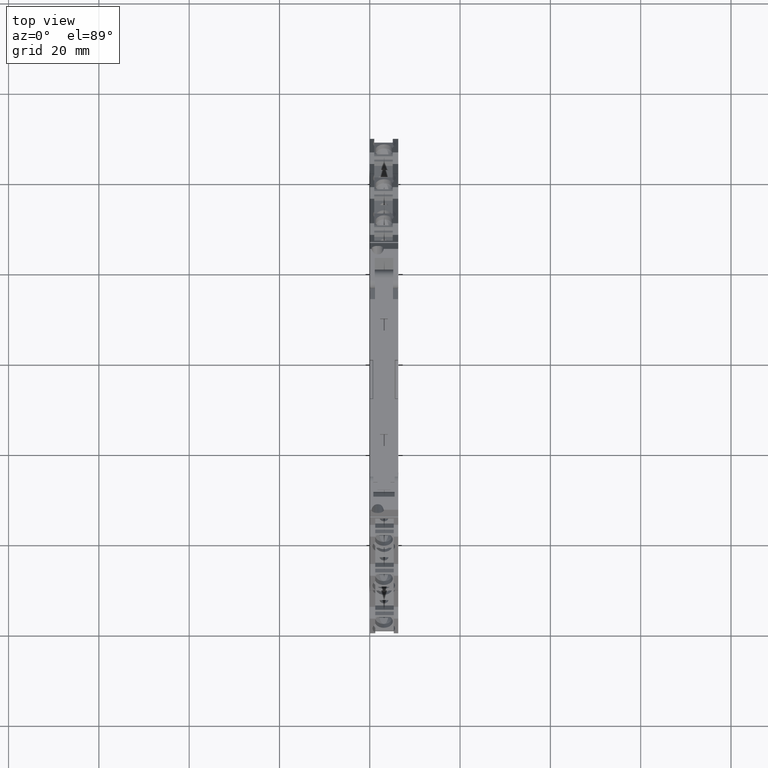
[diagram: clean part render]
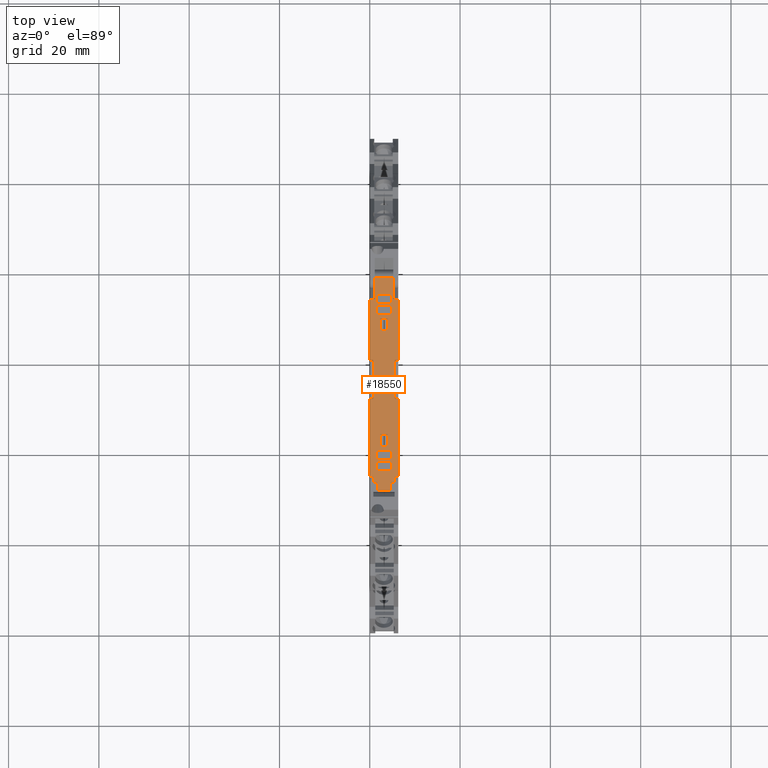
[diagram: same view with one face highlighted and labeled with its STEP entity id]
A machine part, top view. The second image highlights one B-rep face of the part: STEP entity #18550.
In plain terms, the highlighted planar face has unit normal (-0, -0, 1).
Its self-contained STEP definition (entity closure, byte-faithful):
#13890=CARTESIAN_POINT('',(-6.49927640812146,110.199999999949,
-13.9000000015476));
#13900=VERTEX_POINT('',#13890);
#14110=CARTESIAN_POINT('',(-6.57178382632163,110.200000000039,
-11.5500000059275));
#14120=DIRECTION('',(-1.11019430027813E-16,1.,-3.82693666728665E-11));
#14130=DIRECTION('',(-1.,-1.11022301460784E-16,-7.50321528832784E-11));
#14140=AXIS2_PLACEMENT_3D('',#14110,#14120,#14130);
#14150=PLANE('',#14140);
#14160=CARTESIAN_POINT('',(1.15118559197526,110.200000000072,
-10.6911201562861));
#14170=DIRECTION('',(1.,1.11022301450449E-16,7.50321528832784E-11));
#14180=VECTOR('',#14170,1.);
#14190=LINE('',#14160,#14180);
#14200=CARTESIAN_POINT('',(26.7713220694702,110.200000000072,
-10.6911201543637));
#14210=VERTEX_POINT('',#14200);
#14220=CARTESIAN_POINT('',(29.4301250925826,110.200000000072,
-10.6911201541642));
#14230=VERTEX_POINT('',#14220);
#14240=EDGE_CURVE('',#14210,#14230,#14190,.T.);
#14250=ORIENTED_EDGE('',*,*,#14240,.F.);
#14260=CARTESIAN_POINT('',(29.4301250917729,110.200000000485,
0.100000000591375));
#14270=DIRECTION('',(7.50321528832784E-11,-3.82693666728665E-11,-1.));
#14280=VECTOR('',#14270,1.);
#14290=LINE('',#14260,#14280);
#14300=CARTESIAN_POINT('',(29.4301250927115,110.200000000006,
-12.4088798519802));
#14310=VERTEX_POINT('',#14300);
#14320=EDGE_CURVE('',#14230,#14310,#14290,.T.);
#14330=ORIENTED_EDGE('',*,*,#14320,.F.);
#14340=CARTESIAN_POINT('',(1.15118559199036,110.200000000006,
-12.408879854102));
#14350=DIRECTION('',(-1.,-1.11022301450449E-16,-7.50321528832784E-11));
#14360=VECTOR('',#14350,1.);
#14370=LINE('',#14340,#14360);
#14380=CARTESIAN_POINT('',(26.7713220695991,110.200000000006,
-12.4088798521797));
#14390=VERTEX_POINT('',#14380);
#14400=EDGE_CURVE('',#14310,#14390,#14370,.T.);
#14410=ORIENTED_EDGE('',*,*,#14400,.F.);
#14420=CARTESIAN_POINT('',(26.7713220686605,110.200000000485,
0.100000000567998));
#14430=DIRECTION('',(-7.50321528832784E-11,3.82693666728665E-11,1.));
#14440=VECTOR('',#14430,1.);
#14450=LINE('',#14420,#14440);
#14460=EDGE_CURVE('',#14390,#14210,#14450,.T.);
#14470=ORIENTED_EDGE('',*,*,#14460,.F.);
#14480=EDGE_LOOP('',(#14470,#14410,#14330,#14250));
#14490=FACE_BOUND('',#14480,.T.);
#14500=CARTESIAN_POINT('',(1.15118559197526,110.200000000072,
-10.6911201562861));
#14510=DIRECTION('',(1.,1.11022301450449E-16,7.50321528832784E-11));
#14520=VECTOR('',#14510,1.);
#14530=LINE('',#14500,#14520);
#14540=CARTESIAN_POINT('',(1.17132209109853,110.200000000072,
-10.6911201562846));
#14550=VERTEX_POINT('',#14540);
#14560=CARTESIAN_POINT('',(3.83012511421093,110.200000000072,
-10.6911201560851));
#14570=VERTEX_POINT('',#14560);
#14580=EDGE_CURVE('',#14550,#14570,#14530,.T.);
#14590=ORIENTED_EDGE('',*,*,#14580,.F.);
#14600=CARTESIAN_POINT('',(3.83012511340125,110.200000000485,
0.100000000366296));
#14610=DIRECTION('',(7.50321528832784E-11,-3.82693666728665E-11,-1.));
#14620=VECTOR('',#14610,1.);
#14630=LINE('',#14600,#14620);
#14640=CARTESIAN_POINT('',(3.83012511433982,110.200000000006,
-12.408879853901));
#14650=VERTEX_POINT('',#14640);
#14660=EDGE_CURVE('',#14570,#14650,#14630,.T.);
#14670=ORIENTED_EDGE('',*,*,#14660,.F.);
#14680=CARTESIAN_POINT('',(1.15118559199036,110.200000000006,
-12.408879854102));
#14690=DIRECTION('',(-1.,-1.11022301450449E-16,-7.50321528832784E-11));
#14700=VECTOR('',#14690,1.);
#14710=LINE('',#14680,#14700);
#14720=CARTESIAN_POINT('',(1.17132209122742,110.200000000006,
-12.4088798541005));
#14730=VERTEX_POINT('',#14720);
#14740=EDGE_CURVE('',#14650,#14730,#14710,.T.);
#14750=ORIENTED_EDGE('',*,*,#14740,.F.);
#14760=CARTESIAN_POINT('',(1.17132209028885,110.200000000485,
0.100000000342919));
#14770=DIRECTION('',(-7.50321528832784E-11,3.82693666728665E-11,1.));
#14780=VECTOR('',#14770,1.);
#14790=LINE('',#14760,#14780);
#14800=EDGE_CURVE('',#14730,#14550,#14790,.T.);
#14810=ORIENTED_EDGE('',*,*,#14800,.F.);
#14820=EDGE_LOOP('',(#14810,#14750,#14670,#14590));
#14830=FACE_BOUND('',#14820,.T.);
#14840=CARTESIAN_POINT('',(1.15118559196478,110.200000000118,
-9.50000000156393));
#14850=DIRECTION('',(-1.,-1.11019519299545E-16,-2.33272930840562E-12));
#14860=VECTOR('',#14850,1.);
#14870=LINE('',#14840,#14860);
#14880=CARTESIAN_POINT('',(38.500723592,110.200000000118,
-9.5000000014768));
#14890=VERTEX_POINT('',#14880);
#14900=CARTESIAN_POINT('',(38.0007235920675,110.200000000075,
-9.50000000147797));
#14910=VERTEX_POINT('',#14900);
#14920=EDGE_CURVE('',#14890,#14910,#14870,.T.);
#14930=ORIENTED_EDGE('',*,*,#14920,.F.);
#14940=CARTESIAN_POINT('',(38.0007235920713,110.200000000074,
-9.55000300242922));
#14950=DIRECTION('',(-7.50329127375884E-11,3.82702498448278E-11,1.));
#14960=VECTOR('',#14950,1.);
#14970=LINE('',#14940,#14960);
#14980=CARTESIAN_POINT('',(38.0007235920713,110.200000000116,
-9.55000000242922));
#14990=VERTEX_POINT('',#14980);
#15000=EDGE_CURVE('',#14990,#14910,#14970,.T.);
#15010=ORIENTED_EDGE('',*,*,#15000,.T.);
#15020=CARTESIAN_POINT('',(1.15118559196522,110.200000000116,
-9.55000000519412));
#15030=DIRECTION('',(-1.,-1.11022301450449E-16,-7.50321528832784E-11));
#15040=VECTOR('',#15030,1.);
#15050=LINE('',#15020,#15040);
#15060=CARTESIAN_POINT('',(33.7493922405502,110.200000000116,
-9.55000000274821));
#15070=VERTEX_POINT('',#15060);
#15080=EDGE_CURVE('',#14990,#15070,#15050,.T.);
#15090=ORIENTED_EDGE('',*,*,#15080,.F.);
#15100=CARTESIAN_POINT('',(33.7493922398261,110.200000000485,
0.10000000062935));
#15110=DIRECTION('',(7.50321528832784E-11,-3.82693666728665E-11,-1.));
#15120=VECTOR('',#15110,1.);
#15130=LINE('',#15100,#15120);
#15140=CARTESIAN_POINT('',(33.7493922404676,110.200000000158,
-8.45000000282515));
#15150=VERTEX_POINT('',#15140);
#15160=EDGE_CURVE('',#15150,#15070,#15130,.T.);
#15170=ORIENTED_EDGE('',*,*,#15160,.T.);
#15180=CARTESIAN_POINT('',(1.15118559195555,110.200000000158,
-8.45000000527106));
#15190=DIRECTION('',(1.,1.11022301456429E-16,7.50321528832784E-11));
#15200=VECTOR('',#15190,1.);
#15210=LINE('',#15180,#15200);
#15220=CARTESIAN_POINT('',(20.298501746368,110.200000000158,
-8.4500000038344));
#15230=VERTEX_POINT('',#15220);
#15240=EDGE_CURVE('',#15230,#15150,#15210,.T.);
#15250=ORIENTED_EDGE('',*,*,#15240,.T.);
#15260=CARTESIAN_POINT('',(20.2985017457265,110.200000000485,
0.100000000511088));
#15270=DIRECTION('',(7.50321528832784E-11,-3.82693666728665E-11,-1.));
#15280=VECTOR('',#15270,1.);
#15290=LINE('',#15260,#15280);
#15300=CARTESIAN_POINT('',(20.2985017464204,110.200000000131,
-9.14777815563321));
#15310=VERTEX_POINT('',#15300);
#15320=EDGE_CURVE('',#15230,#15310,#15290,.T.);
#15330=ORIENTED_EDGE('',*,*,#15320,.F.);
#15340=CARTESIAN_POINT('',(1.15118559196169,110.200000000131,
-9.14777815706988));
#15350=DIRECTION('',(-1.,-1.11022301455509E-16,-7.50321528832784E-11));
#15360=VECTOR('',#15350,1.);
#15370=LINE('',#15340,#15360);
#15380=CARTESIAN_POINT('',(11.7029454372739,110.200000000131,
-9.14777815627816));
#15390=VERTEX_POINT('',#15380);
#15400=EDGE_CURVE('',#15310,#15390,#15370,.T.);
#15410=ORIENTED_EDGE('',*,*,#15400,.F.);
#15420=CARTESIAN_POINT('',(11.70294543658,110.200000000485,
0.100000000435515));
#15430=DIRECTION('',(-7.50321528832784E-11,3.82693666728665E-11,1.));
#15440=VECTOR('',#15430,1.);
#15450=LINE('',#15420,#15440);
#15460=CARTESIAN_POINT('',(11.7029454372215,110.200000000158,
-8.45000000447934));
#15470=VERTEX_POINT('',#15460);
#15480=EDGE_CURVE('',#15390,#15470,#15450,.T.);
#15490=ORIENTED_EDGE('',*,*,#15480,.F.);
#15500=CARTESIAN_POINT('',(-5.54571119067333,110.200000000158,
-8.45000000577354));
#15510=VERTEX_POINT('',#15500);
#15520=EDGE_CURVE('',#15510,#15470,#15210,.T.);
#15530=ORIENTED_EDGE('',*,*,#15520,.T.);
#15540=CARTESIAN_POINT('',(-5.54571119065338,110.200000000485,
0.100000000283862));
#15550=DIRECTION('',(2.3327106029319E-12,3.82693666728665E-11,1.));
#15560=VECTOR('',#15550,1.);
#15570=LINE('',#15540,#15560);
#15580=CARTESIAN_POINT('',(-5.54571119067508,110.200000000129,
-9.20000000138976));
#15590=VERTEX_POINT('',#15580);
#15600=EDGE_CURVE('',#15590,#15510,#15570,.T.);
#15610=ORIENTED_EDGE('',*,*,#15600,.T.);
#15620=CARTESIAN_POINT('',(1.15118559196215,110.200000000129,
-9.20000000140538));
#15630=DIRECTION('',(-1.,-1.11019340754548E-16,2.33276942258406E-12));
#15640=VECTOR('',#15630,1.);
#15650=LINE('',#15620,#15640);
#15660=CARTESIAN_POINT('',(-6.49927640809956,110.200000000129,
-9.20000000138753));
#15670=VERTEX_POINT('',#15660);
#15680=EDGE_CURVE('',#15590,#15670,#15650,.T.);
#15690=ORIENTED_EDGE('',*,*,#15680,.F.);
#15700=CARTESIAN_POINT('',(1.15118559196215,110.200000000129,
-9.20000000140538));
#15710=DIRECTION('',(-1.,-1.11019340754548E-16,2.33276942258407E-12));
#15720=VECTOR('',#15710,1.);
#15730=LINE('',#15700,#15720);
#15740=CARTESIAN_POINT('',(-6.79927687201046,110.200000000129,
-9.20000000138683));
#15750=VERTEX_POINT('',#15740);
#15760=EDGE_CURVE('',#15670,#15750,#15730,.T.);
#15770=ORIENTED_EDGE('',*,*,#15760,.F.);
#15780=CARTESIAN_POINT('',(-6.79927687203215,110.200000000485,
0.100000000272841));
#15790=DIRECTION('',(-2.33272930840563E-12,3.82693666728665E-11,1.));
#15800=VECTOR('',#15790,1.);
#15810=LINE('',#15780,#15800);
#15820=CARTESIAN_POINT('',(-6.79927687200833,110.200000000094,
-10.1139640577332));
#15830=VERTEX_POINT('',#15820);
#15840=EDGE_CURVE('',#15830,#15750,#15810,.T.);
#15850=ORIENTED_EDGE('',*,*,#15840,.T.);
#15860=CARTESIAN_POINT('',(1.15118559197018,110.200000000094,
-10.1139640571366));
#15870=DIRECTION('',(-1.,-1.11022301454975E-16,-7.50321528832784E-11));
#15880=VECTOR('',#15870,1.);
#15890=LINE('',#15860,#15880);
#15900=CARTESIAN_POINT('',(-8.49927640820279,110.200000000094,
-10.1139640578607));
#15910=VERTEX_POINT('',#15900);
#15920=EDGE_CURVE('',#15830,#15910,#15890,.T.);
#15930=ORIENTED_EDGE('',*,*,#15920,.F.);
#15940=CARTESIAN_POINT('',(-8.49927640896917,110.200000000485,
0.100000000257894));
#15950=DIRECTION('',(-7.50321528832784E-11,3.82693666728665E-11,1.));
#15960=VECTOR('',#15950,1.);
#15970=LINE('',#15940,#15960);
#15980=CARTESIAN_POINT('',(-8.49927640798729,110.199999999984,
-12.9860359539756));
#15990=VERTEX_POINT('',#15980);
#16000=EDGE_CURVE('',#15990,#15910,#15970,.T.);
#16010=ORIENTED_EDGE('',*,*,#16000,.T.);
#16020=CARTESIAN_POINT('',(1.15118559199543,110.199999999984,
-12.9860359532515));
#16030=DIRECTION('',(1.,1.11022301454975E-16,7.50321528832785E-11));
#16040=VECTOR('',#16030,1.);
#16050=LINE('',#16020,#16040);
#16060=CARTESIAN_POINT('',(-6.79927687200163,110.199999999984,
-12.986035953848));
#16070=VERTEX_POINT('',#16060);
#16080=EDGE_CURVE('',#15990,#16070,#16050,.T.);
#16090=ORIENTED_EDGE('',*,*,#16080,.F.);
#16100=CARTESIAN_POINT('',(-6.7992768719995,110.199999999949,
-13.9000000015503));
#16110=VERTEX_POINT('',#16100);
#16120=EDGE_CURVE('',#16110,#16070,#15810,.T.);
#16130=ORIENTED_EDGE('',*,*,#16120,.T.);
#16140=CARTESIAN_POINT('',(1.15118559200347,110.199999999949,
-13.9000000014797));
#16150=DIRECTION('',(1.,1.11019769826332E-16,8.87912561076058E-12));
#16160=VECTOR('',#16150,1.);
#16170=LINE('',#16140,#16160);
#16180=EDGE_CURVE('',#16110,#13900,#16170,.T.);
#16190=ORIENTED_EDGE('',*,*,#16180,.F.);
#16200=CARTESIAN_POINT('',(1.15118559200347,110.199999999949,
-13.9000000014797));
#16210=DIRECTION('',(1.,1.11019769826332E-16,8.8791256107606E-12));
#16220=VECTOR('',#16210,1.);
#16230=LINE('',#16200,#16220);
#16240=CARTESIAN_POINT('',(-5.545711032584,110.199999999949,
-13.9000000015392));
#16250=VERTEX_POINT('',#16240);
#16260=EDGE_CURVE('',#13900,#16250,#16230,.T.);
#16270=ORIENTED_EDGE('',*,*,#16260,.F.);
#16280=CARTESIAN_POINT('',(-5.54571103270831,110.200000000485,
0.100000000283862));
#16290=DIRECTION('',(-8.8791256107606E-12,3.82693666728665E-11,1.));
#16300=VECTOR('',#16290,1.);
#16310=LINE('',#16280,#16300);
#16320=CARTESIAN_POINT('',(-5.54571103257734,110.19999999992,
-14.6500000057735));
#16330=VERTEX_POINT('',#16320);
#16340=EDGE_CURVE('',#16330,#16250,#16310,.T.);
#16350=ORIENTED_EDGE('',*,*,#16340,.T.);
#16360=CARTESIAN_POINT('',(1.15118559201006,110.19999999992,
-14.650000005271));
#16370=DIRECTION('',(1.,1.11022301456429E-16,7.50321528832785E-11));
#16380=VECTOR('',#16370,1.);
#16390=LINE('',#16360,#16380);
#16400=CARTESIAN_POINT('',(11.7029454376867,110.19999999992,
-14.6500000044793));
#16410=VERTEX_POINT('',#16400);
#16420=EDGE_CURVE('',#16330,#16410,#16390,.T.);
#16430=ORIENTED_EDGE('',*,*,#16420,.F.);
#16440=CARTESIAN_POINT('',(11.70294543658,110.200000000485,
0.100000000435515));
#16450=DIRECTION('',(-7.50321528832784E-11,3.82693666728665E-11,1.));
#16460=VECTOR('',#16450,1.);
#16470=LINE('',#16440,#16460);
#16480=CARTESIAN_POINT('',(11.7029454376344,110.199999999947,
-13.9522218475262));
#16490=VERTEX_POINT('',#16480);
#16500=EDGE_CURVE('',#16410,#16490,#16470,.T.);
#16510=ORIENTED_EDGE('',*,*,#16500,.F.);
#16520=CARTESIAN_POINT('',(1.15118559200393,110.199999999947,
-13.952221848318));
#16530=DIRECTION('',(1.,1.11022301455509E-16,7.50321528832784E-11));
#16540=VECTOR('',#16530,1.);
#16550=LINE('',#16520,#16540);
#16560=CARTESIAN_POINT('',(20.2985017467809,110.199999999947,
-13.9522218468813));
#16570=VERTEX_POINT('',#16560);
#16580=EDGE_CURVE('',#16490,#16570,#16550,.T.);
#16590=ORIENTED_EDGE('',*,*,#16580,.F.);
#16600=CARTESIAN_POINT('',(20.2985017457265,110.200000000485,
0.100000000511088));
#16610=DIRECTION('',(7.50321528832784E-11,-3.82693666728665E-11,-1.));
#16620=VECTOR('',#16610,1.);
#16630=LINE('',#16600,#16620);
#16640=CARTESIAN_POINT('',(20.2985017468332,110.19999999992,
-14.6500000038343));
#16650=VERTEX_POINT('',#16640);
#16660=EDGE_CURVE('',#16570,#16650,#16630,.T.);
#16670=ORIENTED_EDGE('',*,*,#16660,.F.);
#16680=CARTESIAN_POINT('',(33.7493922409624,110.19999999992,
-14.6500000028251));
#16690=VERTEX_POINT('',#16680);
#16700=EDGE_CURVE('',#16650,#16690,#16390,.T.);
#16710=ORIENTED_EDGE('',*,*,#16700,.F.);
#16720=CARTESIAN_POINT('',(33.7493922398556,110.200000000485,
0.10000000062935));
#16730=DIRECTION('',(7.50321528832784E-11,-3.82693666728665E-11,-1.));
#16740=VECTOR('',#16730,1.);
#16750=LINE('',#16720,#16740);
#16760=CARTESIAN_POINT('',(33.7493922408798,110.199999999963,
-13.5500000027481));
#16770=VERTEX_POINT('',#16760);
#16780=EDGE_CURVE('',#16770,#16690,#16750,.T.);
#16790=ORIENTED_EDGE('',*,*,#16780,.T.);
#16800=CARTESIAN_POINT('',(1.15118559200039,110.199999999963,
-13.550000005194));
#16810=DIRECTION('',(1.,1.11022301450449E-16,7.50321528832784E-11));
#16820=VECTOR('',#16810,1.);
#16830=LINE('',#16800,#16820);
#16840=CARTESIAN_POINT('',(37.8109073439702,110.199999999963,
-13.5500000024433));
#16850=VERTEX_POINT('',#16840);
#16860=EDGE_CURVE('',#16770,#16850,#16830,.T.);
#16870=ORIENTED_EDGE('',*,*,#16860,.F.);
#16880=CARTESIAN_POINT('',(40.5471615470792,110.199999999919,
-14.700000025792));
#16890=CARTESIAN_POINT('',(39.6983488953998,110.199999999919,
-14.7000000258011));
#16900=CARTESIAN_POINT('',(38.8495362437204,110.199999999919,
-14.7000000258134));
#16910=CARTESIAN_POINT('',(37.6847600700366,110.199999999919,
-14.7000000258285));
#16920=CARTESIAN_POINT('',(37.3743560280508,110.200000000283,
-5.16937412659455));
#16930=CARTESIAN_POINT('',(36.8270911518843,110.200000001669,
31.0364593499661));
#16940=CARTESIAN_POINT('',(36.5998596208457,110.200000002665,
57.0746135346101));
#16950=CARTESIAN_POINT('',(36.2838960941361,110.200000005065,
119.784956646399));
#16960=CARTESIAN_POINT('',(36.2007235792814,110.200000006426,
155.353736730281));
#16970=CARTESIAN_POINT('',(36.2007235765648,110.200000007812,
191.559570206846));
#16980=B_SPLINE_CURVE_WITH_KNOTS('',3,(#16880,#16890,#16900,#16910,
#16920,#16930,#16940,#16950,#16960,#16970),.UNSPECIFIED.,.F.,.F.,(4,2,2,
2,4),(-2.68642609847781,0.,1.,2.,3.),.UNSPECIFIED.);
#16990=CARTESIAN_POINT('',(37.815068122154,110.199999999961,
-13.600000002101));
#17000=VERTEX_POINT('',#16990);
#17010=EDGE_CURVE('',#17000,#16850,#16980,.T.);
#17020=ORIENTED_EDGE('',*,*,#17010,.T.);
#17030=CARTESIAN_POINT('',(1.15118559200083,110.199999999961,
-13.6000000057699));
#17040=DIRECTION('',(1.,1.11023259661641E-16,1.00070313863015E-10));
#17050=VECTOR('',#17040,1.);
#17060=LINE('',#17030,#17050);
#17070=CARTESIAN_POINT('',(38.5007235920564,110.199999999961,
-13.6000000017214));
#17080=VERTEX_POINT('',#17070);
#17090=EDGE_CURVE('',#17000,#17080,#17060,.T.);
#17100=ORIENTED_EDGE('',*,*,#17090,.F.);
#17110=CARTESIAN_POINT('',(38.5007235918678,110.200000000485,
0.10000000060224));
#17120=DIRECTION('',(-1.37658449900878E-11,3.82693666728665E-11,1.));
#17130=VECTOR('',#17120,1.);
#17140=LINE('',#17110,#17130);
#17150=EDGE_CURVE('',#17080,#14890,#17140,.T.);
#17160=ORIENTED_EDGE('',*,*,#17150,.F.);
#17170=EDGE_LOOP('',(#17160,#17100,#17020,#16870,#16790,#16710,#16670,
#16590,#16510,#16430,#16350,#16270,#16190,#16130,#16090,#16010,#15930,
#15850,#15770,#15690,#15610,#15530,#15490,#15410,#15330,#15250,#15170,
#15090,#15010,#14930));
#17180=FACE_OUTER_BOUND('',#17170,.T.);
#17190=CARTESIAN_POINT('',(1.15118559196786,110.200000000104,
-9.85000000527107));
#17200=DIRECTION('',(1.,1.11022301463374E-16,7.50321528832785E-11));
#17210=VECTOR('',#17200,1.);
#17220=LINE('',#17190,#17210);
#17230=CARTESIAN_POINT('',(-4.24927640809874,110.200000000104,
-9.85000000567627));
#17240=VERTEX_POINT('',#17230);
#17250=CARTESIAN_POINT('',(-2.24927640809874,110.200000000104,
-9.85000000552621));
#17260=VERTEX_POINT('',#17250);
#17270=EDGE_CURVE('',#17240,#17260,#17220,.T.);
#17280=ORIENTED_EDGE('',*,*,#17270,.F.);
#17290=CARTESIAN_POINT('',(-2.24927640884532,110.200000000485,
0.100000000312845));
#17300=DIRECTION('',(7.50321528832785E-11,-3.82693666728665E-11,-1.));
#17310=VECTOR('',#17300,1.);
#17320=LINE('',#17290,#17310);
#17330=CARTESIAN_POINT('',(-2.24927640784364,110.199999999974,
-13.2500000054581));
#17340=VERTEX_POINT('',#17330);
#17350=EDGE_CURVE('',#17260,#17340,#17320,.T.);
#17360=ORIENTED_EDGE('',*,*,#17350,.F.);
#17370=CARTESIAN_POINT('',(1.15118559199775,110.199999999974,
-13.250000005203));
#17380=DIRECTION('',(-1.,-1.11022301463374E-16,-7.50321528832785E-11));
#17390=VECTOR('',#17380,1.);
#17400=LINE('',#17370,#17390);
#17410=CARTESIAN_POINT('',(-4.24927640784364,110.199999999974,
-13.2500000056082));
#17420=VERTEX_POINT('',#17410);
#17430=EDGE_CURVE('',#17340,#17420,#17400,.T.);
#17440=ORIENTED_EDGE('',*,*,#17430,.F.);
#17450=CARTESIAN_POINT('',(-4.24927640884531,110.200000000485,
0.100000000295261));
#17460=DIRECTION('',(-7.50321528832785E-11,3.82693666728665E-11,1.));
#17470=VECTOR('',#17460,1.);
#17480=LINE('',#17450,#17470);
#17490=EDGE_CURVE('',#17420,#17240,#17480,.T.);
#17500=ORIENTED_EDGE('',*,*,#17490,.F.);
#17510=EDGE_LOOP('',(#17500,#17440,#17360,#17280));
#17520=FACE_BOUND('',#17510,.T.);
#17530=CARTESIAN_POINT('',(1.15118559196786,110.200000000104,
-9.85000000519412));
#17540=DIRECTION('',(1.,1.11022301463374E-16,7.50321528832785E-11));
#17550=VECTOR('',#17540,1.);
#17560=LINE('',#17530,#17550);
#17570=CARTESIAN_POINT('',(32.850723591528,110.200000000104,
-9.85000000281564));
#17580=VERTEX_POINT('',#17570);
#17590=CARTESIAN_POINT('',(34.8507235914457,110.200000000104,
-9.85000000266557));
#17600=VERTEX_POINT('',#17590);
#17610=EDGE_CURVE('',#17580,#17600,#17560,.T.);
#17620=ORIENTED_EDGE('',*,*,#17610,.F.);
#17630=CARTESIAN_POINT('',(34.8507235906992,110.200000000485,
0.100000000639033));
#17640=DIRECTION('',(7.50321528832785E-11,-3.82693666728665E-11,-1.));
#17650=VECTOR('',#17640,1.);
#17660=LINE('',#17630,#17650);
#17670=CARTESIAN_POINT('',(34.8507235917009,110.199999999974,
-13.2500000026654));
#17680=VERTEX_POINT('',#17670);
#17690=EDGE_CURVE('',#17600,#17680,#17660,.T.);
#17700=ORIENTED_EDGE('',*,*,#17690,.F.);
#17710=CARTESIAN_POINT('',(1.15118559199775,110.199999999974,
-13.250000005194));
#17720=DIRECTION('',(-1.,-1.11022301463374E-16,-7.50321528832785E-11));
#17730=VECTOR('',#17720,1.);
#17740=LINE('',#17710,#17730);
#17750=CARTESIAN_POINT('',(32.8507235917831,110.199999999974,
-13.2500000028155));
#17760=VERTEX_POINT('',#17750);
#17770=EDGE_CURVE('',#17680,#17760,#17740,.T.);
#17780=ORIENTED_EDGE('',*,*,#17770,.F.);
#17790=CARTESIAN_POINT('',(32.8507235907814,110.200000000485,
0.100000000621449));
#17800=DIRECTION('',(-7.50321528832785E-11,3.82693666728665E-11,1.));
#17810=VECTOR('',#17800,1.);
#17820=LINE('',#17790,#17810);
#17830=EDGE_CURVE('',#17760,#17580,#17820,.T.);
#17840=ORIENTED_EDGE('',*,*,#17830,.F.);
#17850=EDGE_LOOP('',(#17840,#17780,#17700,#17620));
#17860=FACE_BOUND('',#17850,.T.);
#17870=CARTESIAN_POINT('',(-1.7492764087789,110.200000000485,
0.100000000317241));
#17880=DIRECTION('',(-7.50321528832785E-11,3.82693666728665E-11,1.));
#17890=VECTOR('',#17880,1.);
#17900=LINE('',#17870,#17890);
#17910=CARTESIAN_POINT('',(-1.74927640777722,110.199999999974,
-13.2500000054206));
#17920=VERTEX_POINT('',#17910);
#17930=CARTESIAN_POINT('',(-1.74927640803233,110.200000000104,
-9.85000000548869));
#17940=VERTEX_POINT('',#17930);
#17950=EDGE_CURVE('',#17920,#17940,#17900,.T.);
#17960=ORIENTED_EDGE('',*,*,#17950,.F.);
#17970=CARTESIAN_POINT('',(1.15118559196786,110.200000000104,
-9.85000000527107));
#17980=DIRECTION('',(1.,1.11022301463374E-16,7.50321528832785E-11));
#17990=VECTOR('',#17980,1.);
#18000=LINE('',#17970,#17990);
#18010=CARTESIAN_POINT('',(0.250723591967665,110.200000000104,
-9.85000000533863));
#18020=VERTEX_POINT('',#18010);
#18030=EDGE_CURVE('',#17940,#18020,#18000,.T.);
#18040=ORIENTED_EDGE('',*,*,#18030,.F.);
#18050=CARTESIAN_POINT('',(0.250723591221093,110.200000000485,
0.100000000334825));
#18060=DIRECTION('',(7.50321528832785E-11,-3.82693666728665E-11,-1.));
#18070=VECTOR('',#18060,1.);
#18080=LINE('',#18050,#18070);
#18090=CARTESIAN_POINT('',(0.250723592222772,110.199999999974,
-13.2500000052706));
#18100=VERTEX_POINT('',#18090);
#18110=EDGE_CURVE('',#18020,#18100,#18080,.T.);
#18120=ORIENTED_EDGE('',*,*,#18110,.F.);
#18130=CARTESIAN_POINT('',(1.15118559199775,110.199999999974,
-13.250000005203));
#18140=DIRECTION('',(-1.,-1.11022301463374E-16,-7.50321528832785E-11));
#18150=VECTOR('',#18140,1.);
#18160=LINE('',#18130,#18150);
#18170=EDGE_CURVE('',#18100,#17920,#18160,.T.);
#18180=ORIENTED_EDGE('',*,*,#18170,.F.);
#18190=EDGE_LOOP('',(#18180,#18120,#18040,#17960));
#18200=FACE_BOUND('',#18190,.T.);
#18210=CARTESIAN_POINT('',(30.3507235906857,110.200000000485,
0.100000000599469));
#18220=DIRECTION('',(-7.50321528832785E-11,3.82693666728665E-11,1.));
#18230=VECTOR('',#18220,1.);
#18240=LINE('',#18210,#18230);
#18250=CARTESIAN_POINT('',(30.3507235916051,110.199999999974,
-13.2500000030121));
#18260=VERTEX_POINT('',#18250);
#18270=CARTESIAN_POINT('',(30.3507235914323,110.200000000104,
-9.85000000308016));
#18280=VERTEX_POINT('',#18270);
#18290=EDGE_CURVE('',#18260,#18280,#18240,.T.);
#18300=ORIENTED_EDGE('',*,*,#18290,.F.);
#18310=CARTESIAN_POINT('',(1.15118559196786,110.200000000104,
-9.85000000527106));
#18320=DIRECTION('',(1.,1.11022301463374E-16,7.50321528832785E-11));
#18330=VECTOR('',#18320,1.);
#18340=LINE('',#18310,#18330);
#18350=CARTESIAN_POINT('',(32.35072359135,110.200000000104,
-9.85000000293009));
#18360=VERTEX_POINT('',#18350);
#18370=EDGE_CURVE('',#18280,#18360,#18340,.T.);
#18380=ORIENTED_EDGE('',*,*,#18370,.F.);
#18390=CARTESIAN_POINT('',(32.3507235906034,110.200000000485,
0.100000000617053));
#18400=DIRECTION('',(7.50321528832785E-11,-3.82693666728665E-11,-1.));
#18410=VECTOR('',#18400,1.);
#18420=LINE('',#18390,#18410);
#18430=CARTESIAN_POINT('',(32.3507235916051,110.199999999974,
-13.250000002862));
#18440=VERTEX_POINT('',#18430);
#18450=EDGE_CURVE('',#18360,#18440,#18420,.T.);
#18460=ORIENTED_EDGE('',*,*,#18450,.F.);
#18470=CARTESIAN_POINT('',(1.15118559199775,110.199999999974,
-13.250000005203));
#18480=DIRECTION('',(-1.,-1.11022301463374E-16,-7.50321528832785E-11));
#18490=VECTOR('',#18480,1.);
#18500=LINE('',#18470,#18490);
#18510=EDGE_CURVE('',#18440,#18260,#18500,.T.);
#18520=ORIENTED_EDGE('',*,*,#18510,.F.);
#18530=EDGE_LOOP('',(#18520,#18460,#18380,#18300));
#18540=FACE_BOUND('',#18530,.T.);
#18550=ADVANCED_FACE('',(#14490,#14830,#17180,#17520,#17860,#18200,
#18540),#14150,.T.);